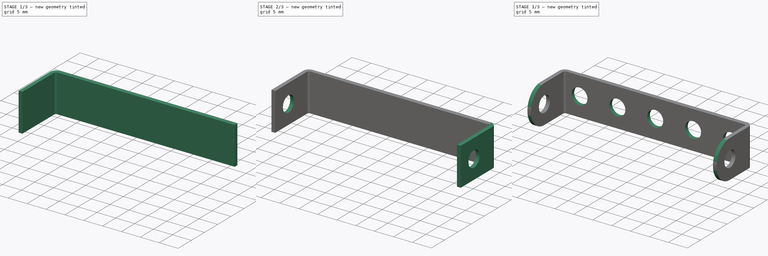
[diagram: build sequence overview — one tinted view per stage of 3, left to right]
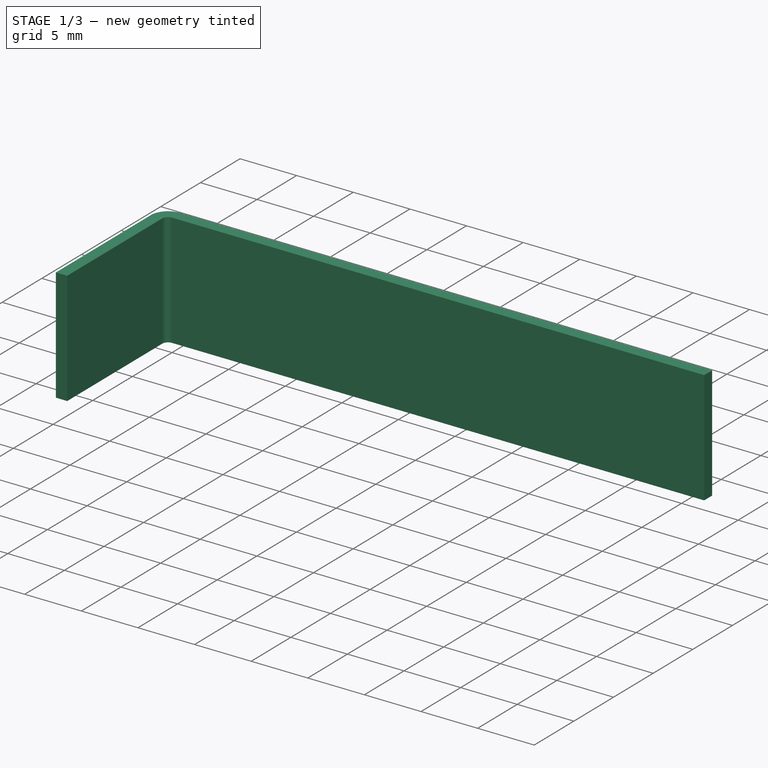
[diagram: stage 1 of 3 — iso view after this stage's code; geometry added in this stage tinted green]
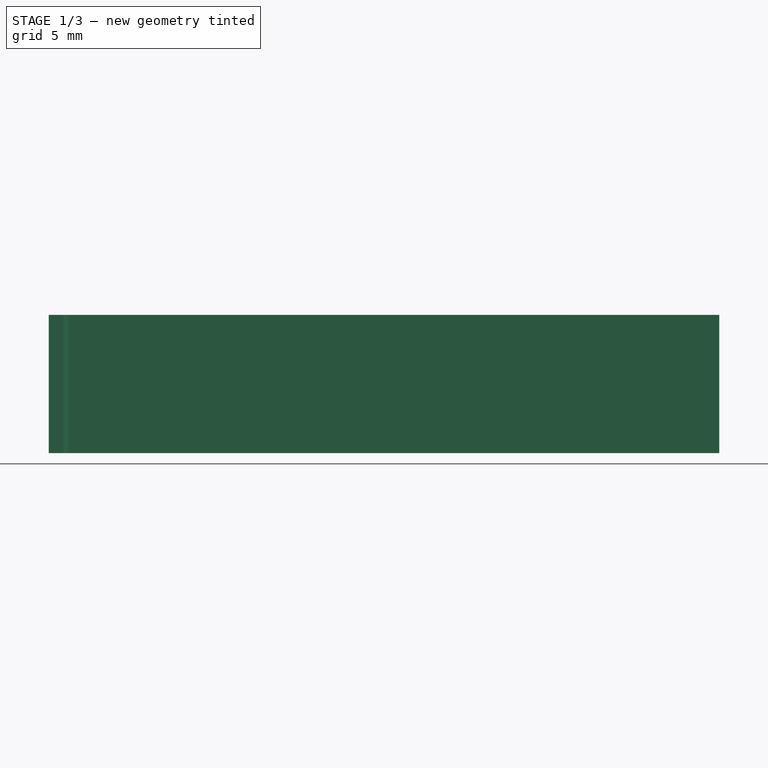
[diagram: stage 1 of 3 — front view after this stage's code; geometry added in this stage tinted green]
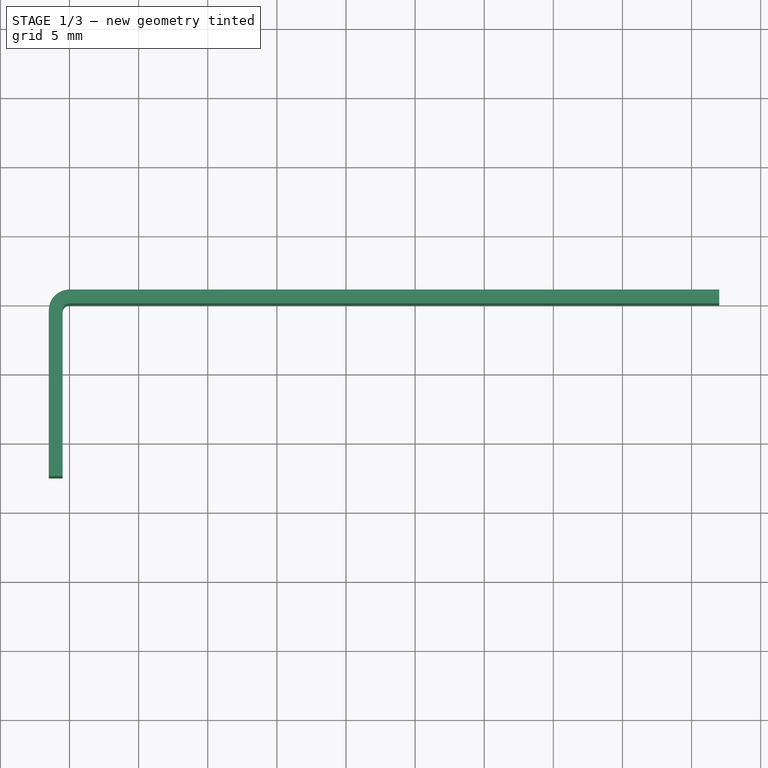
[diagram: stage 1 of 3 — top view after this stage's code; geometry added in this stage tinted green]
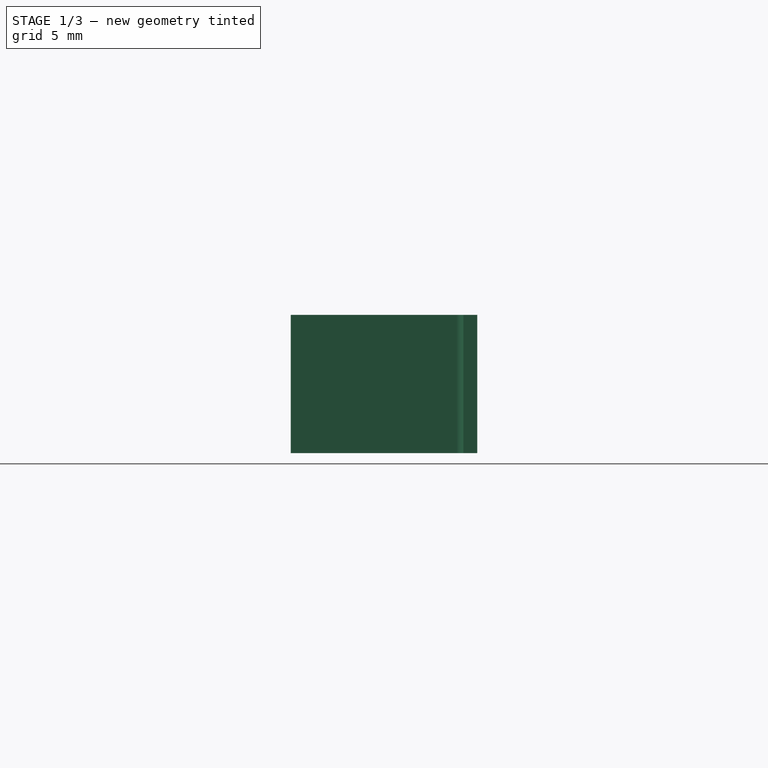
[diagram: stage 1 of 3 — right view after this stage's code; geometry added in this stage tinted green]
FCSTD DOCUMENT  (FreeCAD 0.16RUnknown)
Label: skoba_1_5_1_v2
License: All rights reserved
LicenseURL: http://en.wikipedia.org/wiki/All_rights_reserved
objects: Sketcher::SketchObject×3, Part::FeaturePython×2, PartDesign::Pocket×2, Drawing::FeatureViewPart×2, PartDesign::Pad×1, PartDesign::Fillet×1, Part::Feature×1, Drawing::FeaturePage×1
note: 13 computed .brp shape members not serialized (recipe doc carries the construction recipe); baked Part::Feature solids carry a one-line shape summary decoded from their .brp

FEATURE [Sketcher::SketchObject] Sketch
  sketch-geometry (4):
    g0: LineSegment StartX=0 StartY=0 StartZ=0 EndX=47 EndY=0 EndZ=0
    g1: LineSegment StartX=47 StartY=0 StartZ=0 EndX=47 EndY=1 EndZ=0
    g2: LineSegment StartX=47 StartY=1 StartZ=0 EndX=0 EndY=1 EndZ=0
    g3: LineSegment StartX=0 StartY=1 StartZ=0 EndX=0 EndY=0 EndZ=0
  constraints (11):
    c: Coincident(g0,g1)
    c: Coincident(g1,g2)
    c: Coincident(g2,g3)
    c: Coincident(g3,g0)
    c: Horizontal(g0)
    c: Horizontal(g2)
    c: Vertical(g1)
    c: Vertical(g3)
    c: Coincident(g0,g-1)
    c: DistanceY(g-1,g2) = 1
    c: DistanceX(g-1,g0) = 47
FEATURE [PartDesign::Pad] Pad
  Length = 10
  Length2 = 100
  Sketch = -> Sketch
  Type = 0
FEATURE [Part::FeaturePython] Bend  # WARN: FeaturePython — macro-defined, semantics opaque (R4)
  angle = 90
  baseObject = -> Pad [Face4]
  gap1 = 0
  gap2 = 0
  invert = false
  length = 12
  radius = 0.5
  reliefd = 1
  reliefw = 0.5
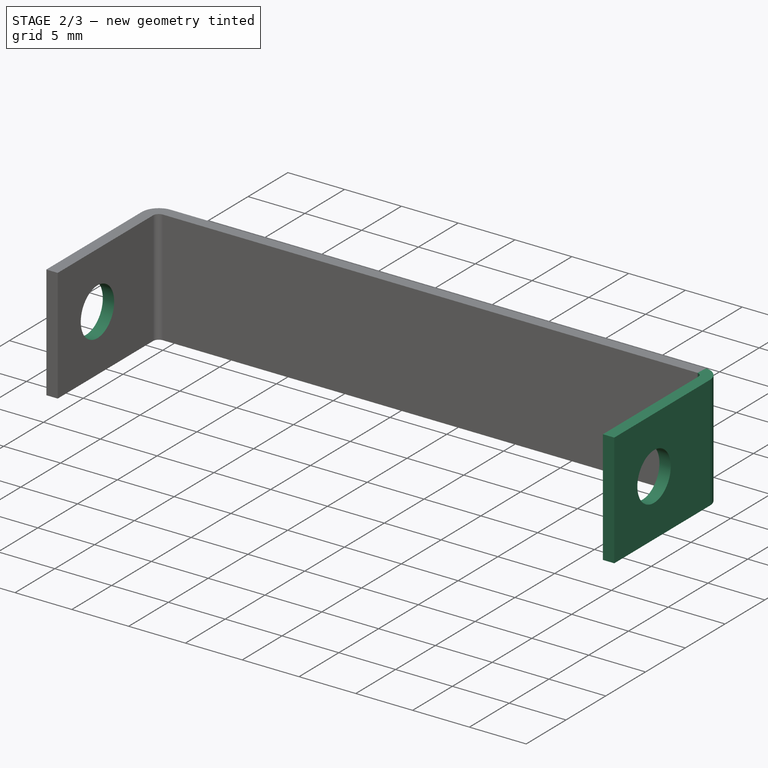
[diagram: stage 2 of 3 — iso view after this stage's code; geometry added in this stage tinted green]
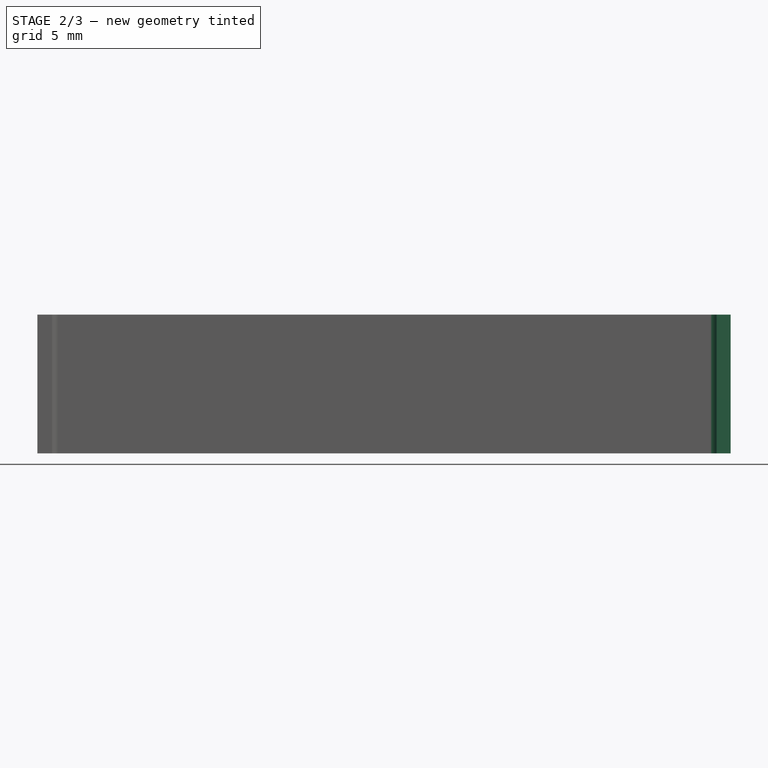
[diagram: stage 2 of 3 — front view after this stage's code; geometry added in this stage tinted green]
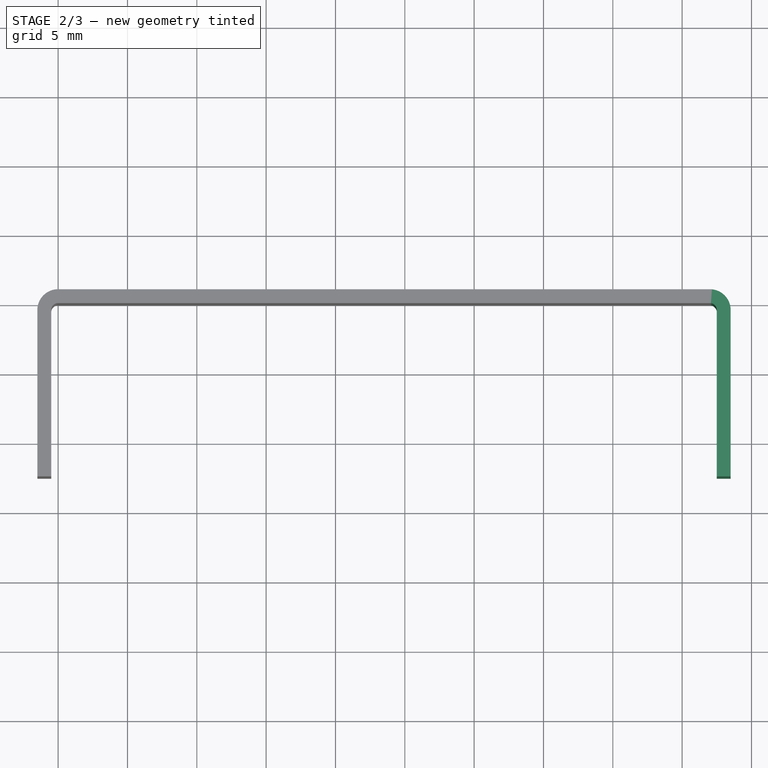
[diagram: stage 2 of 3 — top view after this stage's code; geometry added in this stage tinted green]
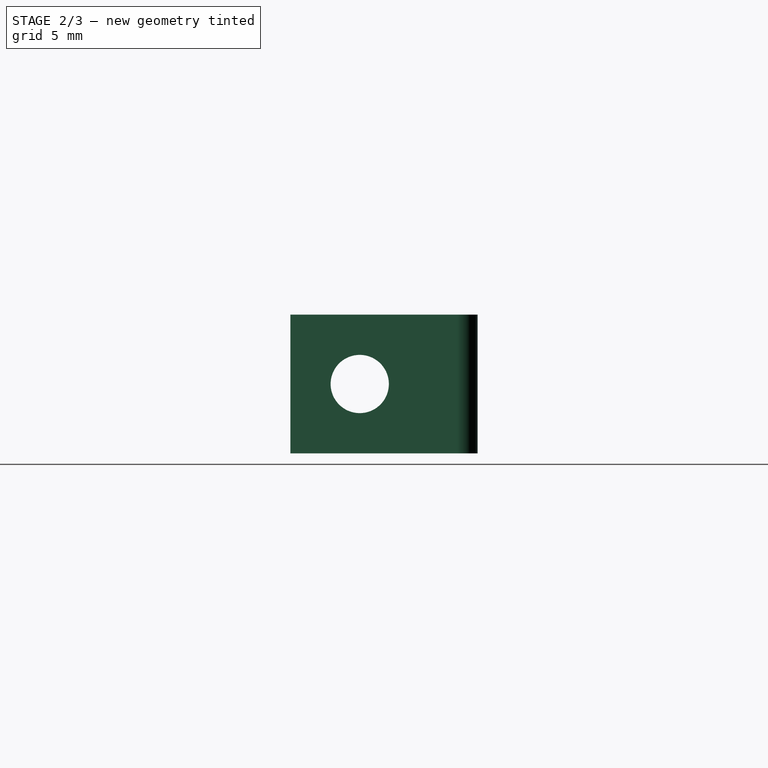
[diagram: stage 2 of 3 — right view after this stage's code; geometry added in this stage tinted green]
FEATURE [Part::FeaturePython] Bend001  # WARN: FeaturePython — macro-defined, semantics opaque (R4)
  angle = 90
  baseObject = -> Bend [Face14]
  gap1 = 0
  gap2 = 0
  invert = true
  length = 12
  radius = 0.5
  reliefd = 1
  reliefw = 0.5
FEATURE [Sketcher::SketchObject] Sketch002
  ExternalGeometry = -> [Bend001]
  Placement = pos=(48.5,0,0) rot=(0.57735,0.57735,0.57735;2.0944rad)
  Support = -> Bend001 [Face3]
  sketch-geometry (1):
    g0: Circle CenterX=-7.5 CenterY=5 CenterZ=0 NormalX=0 NormalY=0 NormalZ=1 Radius=2.1
  constraints (3):
    c: Radius(g0) = 2.1
    c: DistanceX(g-4,g0) = 5
    c: DistanceY(g0,g-4) = 5
FEATURE [PartDesign::Pocket] Pocket
  Length = 5
  Sketch = -> Sketch002
  Type = 1
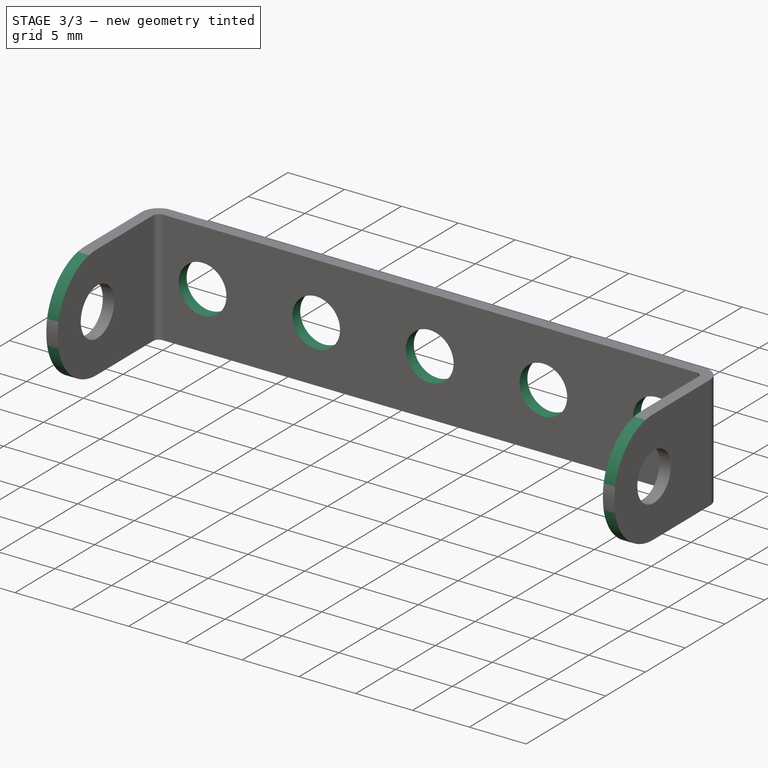
[diagram: stage 3 of 3 — iso view after this stage's code; geometry added in this stage tinted green]
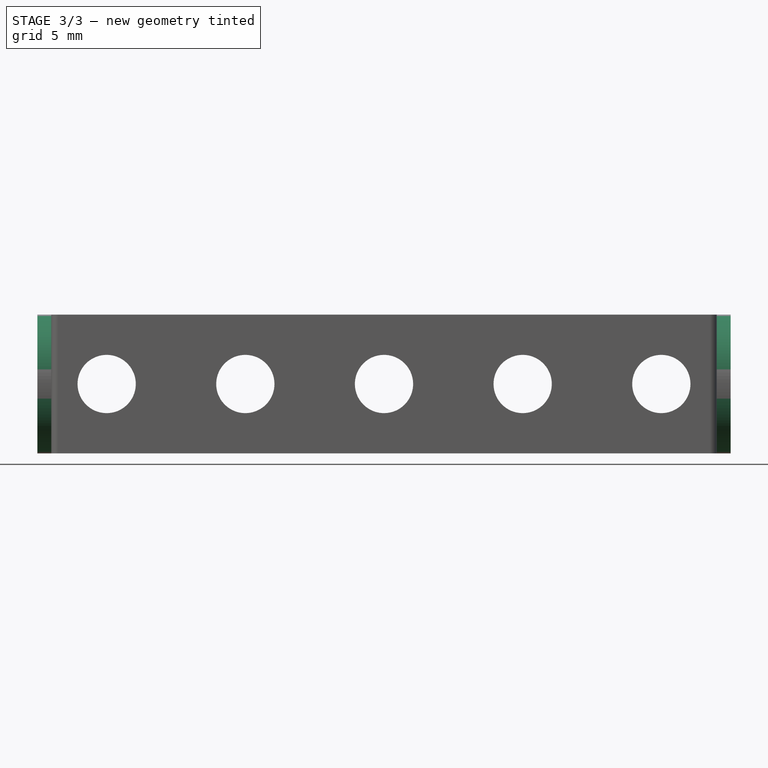
[diagram: stage 3 of 3 — front view after this stage's code; geometry added in this stage tinted green]
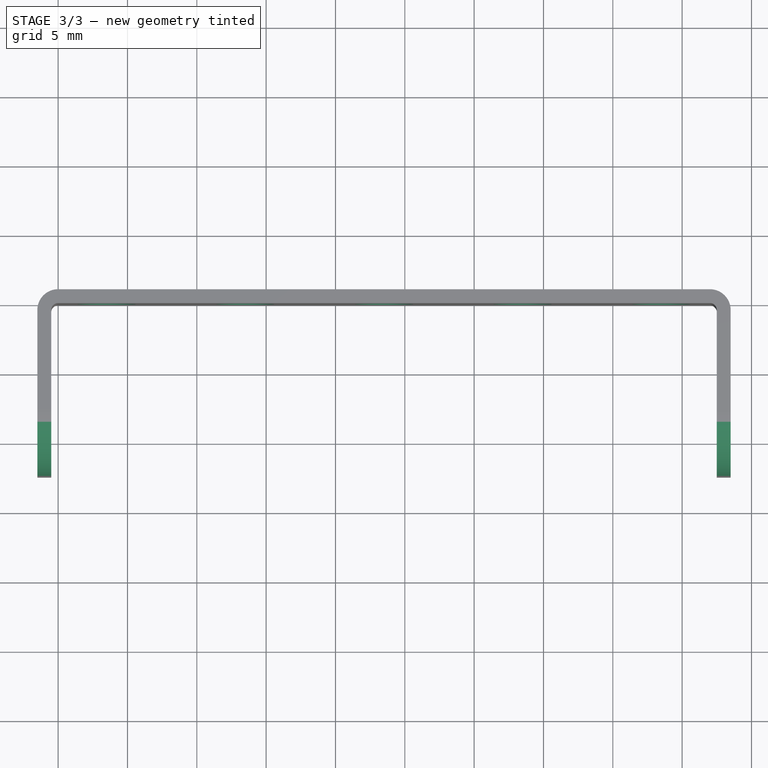
[diagram: stage 3 of 3 — top view after this stage's code; geometry added in this stage tinted green]
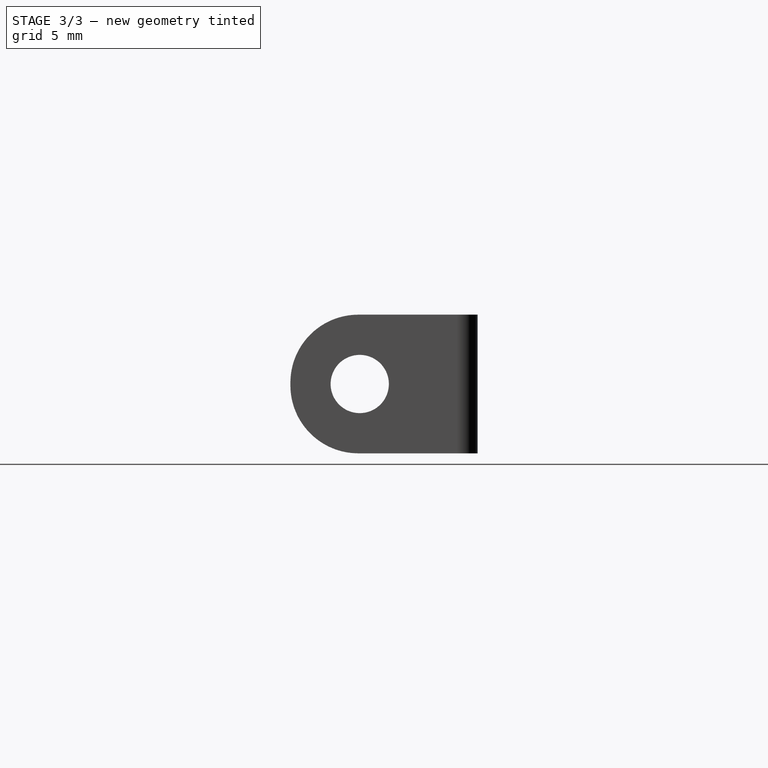
[diagram: stage 3 of 3 — right view after this stage's code; geometry added in this stage tinted green]
FEATURE [PartDesign::Fillet] Fillet
  Base = -> Pocket [Edge40,Edge41,Edge4,Edge3]
  Radius = 4.9
FEATURE [Sketcher::SketchObject] Sketch003
  ExternalGeometry = -> [Fillet]
  Placement = pos=(0,1,0) rot=(0,0.707107,0.707107;3.14159rad)
  Support = -> Fillet [Face13]
  sketch-geometry (9):
    g0: Circle CenterX=-43.5 CenterY=5 CenterZ=0 NormalX=0 NormalY=0 NormalZ=1 Radius=2.1
    g1: Circle CenterX=-33.5 CenterY=5 CenterZ=0 NormalX=0 NormalY=0 NormalZ=1 Radius=2.1
    g2: LineSegment [constr] StartX=-43.5 StartY=5 StartZ=0 EndX=-33.5 EndY=5 EndZ=0
    g3: Circle CenterX=-23.5 CenterY=5 CenterZ=0 NormalX=0 NormalY=0 NormalZ=1 Radius=2.1
    g4: LineSegment [constr] StartX=-33.5 StartY=5 StartZ=0 EndX=-23.5 EndY=5 EndZ=0
    g5: Circle CenterX=-13.5 CenterY=5 CenterZ=0 NormalX=0 NormalY=0 NormalZ=1 Radius=2.1
    g6: LineSegment [constr] StartX=-23.5 StartY=5 StartZ=0 EndX=-13.5 EndY=5 EndZ=0
    g7: Circle CenterX=-3.5 CenterY=5 CenterZ=0 NormalX=0 NormalY=0 NormalZ=1 Radius=2.1
    g8: LineSegment [constr] StartX=-13.5 StartY=5 StartZ=0 EndX=-3.5 EndY=5 EndZ=0
  constraints (23):
    c: Radius(g0) = 2.1
    c: DistanceY(g0,g-4) = 5
    c: Equal(g0,g1) = 2.1
    c: Coincident(g0,g2)
    c: Coincident(g1,g2)
    c: Distance(g2) = 10
    c: Angle(g2) = 0
    c: Equal(g0,g3) = 2.1
    c: Coincident(g1,g4)
    c: Coincident(g3,g4)
    c: Equal(g2,g4)
    c: Parallel(g4,g2)
    c: Equal(g0,g5) = 2.1
    c: Coincident(g3,g6)
    c: Coincident(g5,g6)
    c: Equal(g2,g6)
    c: Parallel(g6,g2)
    c: Equal(g0,g7) = 2.1
    c: Coincident(g5,g8)
    c: Coincident(g7,g8)
    c: Equal(g2,g8)
    c: Parallel(g8,g2)
    c: DistanceX(g-7,g0) = 5
FEATURE [PartDesign::Pocket] Pocket001
  Length = 5
  Sketch = -> Sketch003
  Type = 0
FEATURE [Part::Feature] Unfold
  shape: bbox 75.16 x 1 x 10 mm, 33 faces (baked)
FEATURE [Drawing::FeatureViewPart] Ortho  label="Ortho_0_0"
  Direction = (1,0,0)
  HiddenWidth = 0.15
  LineWidth = 0.35
  Rotation = -90
  ShowHiddenLines = false
  ShowSmoothLines = false
  Source = -> Unfold
  Tolerance = 0.05
  ViewResult = <g id="Ortho_0_0"\n   transform="rotate(-90,19.7249,153.5) translate(19.7249,153.5) scale(1,1)"\n  >\n<g   stroke="rgb(0, 0, 0)"\n   stroke-width="0.35"\n   stroke-linecap="butt"\n   stroke-linejoin="miter"\n   fill="none"\n   transform="scale(1,-1)"\n  >\n<path d="M4.9,-1 L4.35137,-1  L3.80965,-1  L3.28163,-1  L2.77397,-1  L2.29304,-1  L1.8449,-1  L1.43518,-1  L1.06903,-1  L0.751051,-1  L0.485253,-1  L0.274972,-1  L0.122853,-1  L0.0308102,-1  L-8.88178e-16,-1 " /><path id= "2" d=" M 4.9 -1 L 5.1 -1 " />\n<path id= "3" d=" M 4.9 -1 L 5.1 -1 " />\n<path d="M5.1,-1 L5.64863,-1  L6.19035,-1  L6.71837,-1  L7.22603,-1  L7.70696,-1  L8.1551,-1  L8.56482,-1  L8.93097,-1  L9.24895,-1  L9.51475,-1  L9.72503,-1  L9.87715,-1  L9.96919,-1  L10,-1 " /><path id= "5" d=" M -8.88178e-16 -7.88258e-16 L -8.88178e-16 -1 " />\n<path d="M4.9,0 L4.35137,0  L3.80965,0  L3.28163,0  L2.77397,0  L2.29304,0  L1.8449,0  L1.43518,0  L1.06903,0  L0.751051,0  L0.485253,0  L0.274972,0  L0.122853,0  L0.0308102,0  L-8.88178e-16,0 " /><path id= "7" d=" M 4.9 0 L 5.1 0 " />\n<path d="M5.1,0 L5.64863,0  L6.19035,0  L6.71837,0  L7.22603,0  L7.70696,0  L8.1551,0  L8.56482,0  L8.93097,0  L9.24895,0  L9.51475,0  L9.72503,0  L9.87715,0  L9.96919,0  L10,0 " /><path d="M5.1,2.32882e-16 L5.08572,2.32953e-16  L5.07144,2.33012e-16  L5.05716,2.3306e-16  L5.04287,2.33098e-16  L5.02858,2.33125e-16  L5.01429,2.33141e-16  L5,2.33147e-16  L4.98571,2.33141e-16  L4.97142,2.33125e-16  L4.95713,2.33098e-16  L4.94284,2.3306e-16  L4.92856,2.33012e-16  L4.91428,2.32953e-16  L4.9,2.32882e-16 " /><path id= "10" d=" M 4.9 0 L 4.9 -1 " />\n<path id= "11" d=" M 5.1 0 L 5.1 -1 " />\n<path id= "12" d=" M 10 -7.88258e-16 L 10 -1 " />\n<path id= "13" d=" M 4.9 -1 L 5.1 -1 " />\n<path id= "14" d=" M 4.9 -1 L 5.1 -1 " />\n<path id= "15" d=" M 4.9 -1 L 5.1 -1 " />\n</g>\n</g>
  Visible = true
  X = 19.7249
  Y = 153.5
FEATURE [Drawing::FeatureViewPart] Ortho001  label="Ortho_1_0"
  Direction = (0,1,0)
  HiddenWidth = 0.15
  LineWidth = 0.35
  Rotation = -90
  ShowHiddenLines = false
  ShowSmoothLines = false
  Source = -> Unfold
  Tolerance = 0.05
  ViewResult = <g id="Ortho_1_0"\n   transform="rotate(-90,139.112,153.5) translate(139.112,153.5) scale(1,1)"\n  >\n<g   stroke="rgb(0, 0, 0)"\n   stroke-width="0.35"\n   stroke-linecap="butt"\n   stroke-linejoin="miter"\n   fill="none"\n   transform="scale(1,-1)"\n  >\n<path id= "1" d=" M 0 49.0813 L 0 56.1813 " />\n<path d="M4.9 61.0813 A4.9 4.9 0 0 1 -8.88178e-16 56.1813" /><path id= "3" d=" M 0 49.0813 L 10 49.0813 " />\n<path id= "4" d=" M 4.9 61.0813 L 5.1 61.0813 " />\n<path id= "5" d=" M 10 49.0813 L 10 56.1813 " />\n<path d="M5.1 61.0813 A4.9 4.9 0 0 0 10 56.1813" /><circle cx ="5" cy ="56.0813" r ="2.1" /><path id= "8" d=" M 0 47 L 10 47 " />\n<path id= "9" d=" M 0 47 L 0 49.0813 " />\n<path id= "10" d=" M 10 47 L 10 49.0813 " />\n<path id= "11" d=" M 10 47 L 10 49.0813 " />\n<path id= "12" d=" M 0 47 L 0 0 " />\n<path id= "13" d=" M 10 47 L 10 0 " />\n<path id= "14" d=" M 0 0 L 10 0 " />\n<circle cx ="5" cy ="43.5" r ="2.1" /><circle cx ="5" cy ="33.5" r ="2.1" /><circle cx ="5" cy ="23.5" r ="2.1" /><circle cx ="5" cy ="3.5" r ="2.1" /><circle cx ="5" cy ="13.5" r ="2.1" /><path id= "20" d=" M 0 -2.08131 L 0 -9.18131 " />\n<path d="M4.9 -14.0813 A4.9 4.9 0 0 0 -8.88178e-16 -9.18131" /><path id= "22" d=" M 0 -2.08131 L 10 -2.08131 " />\n<path id= "23" d=" M 4.9 -14.0813 L 5.1 -14.0813 " />\n<path id= "24" d=" M 10 -2.08131 L 10 -9.18131 " />\n<path d="M5.1 -14.0813 A4.9 4.9 0 0 1 10 -9.18131" /><circle cx ="5" cy ="-9.08131" r ="2.1" /><path id= "27" d=" M 0 0 L 0 -2.08131 " />\n<path id= "28" d=" M 10 0 L 10 -2.08131 " />\n<circle cx ="5" cy ="33.5" r ="2.1" /><circle cx ="5" cy ="43.5" r ="2.1" /></g>\n</g>
  Visible = true
  X = 139.112
  Y = 153.5
FEATURE [Drawing::FeaturePage] Page
  Group = -> [Ortho,Ortho001]
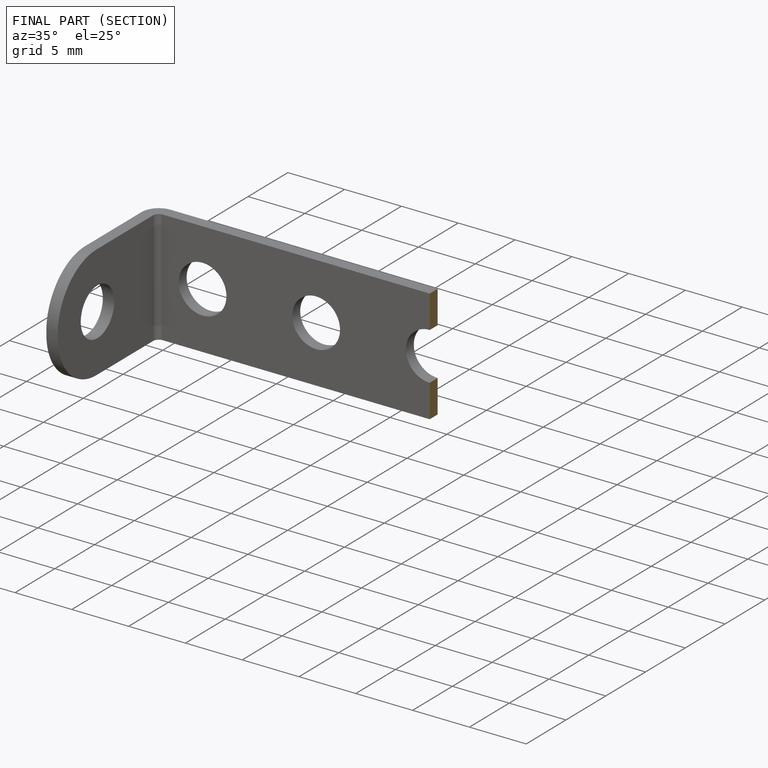
[diagram: finished part — half-section view (interior)]
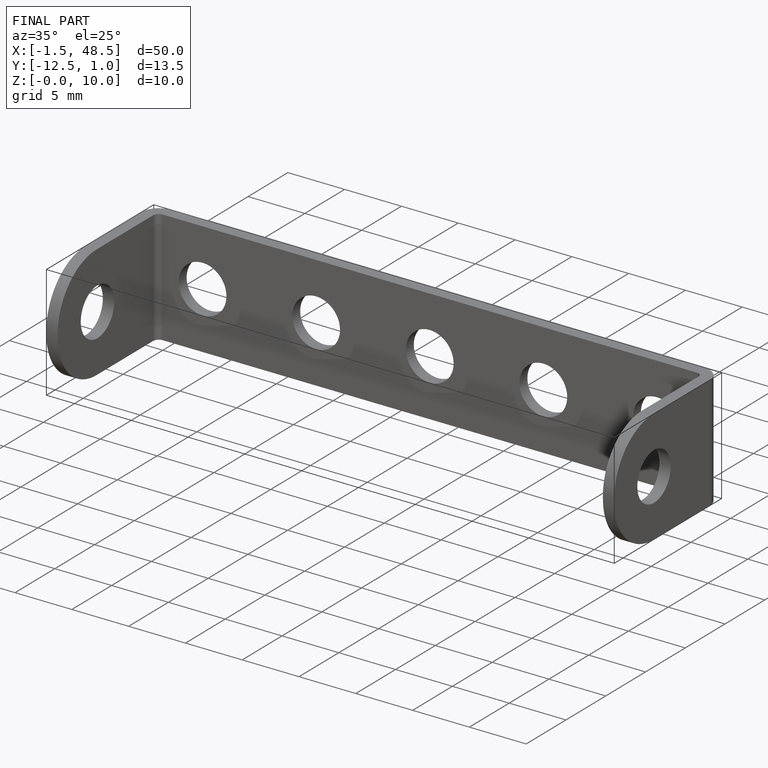
[diagram: finished part — iso view with bounding-box wireframe]
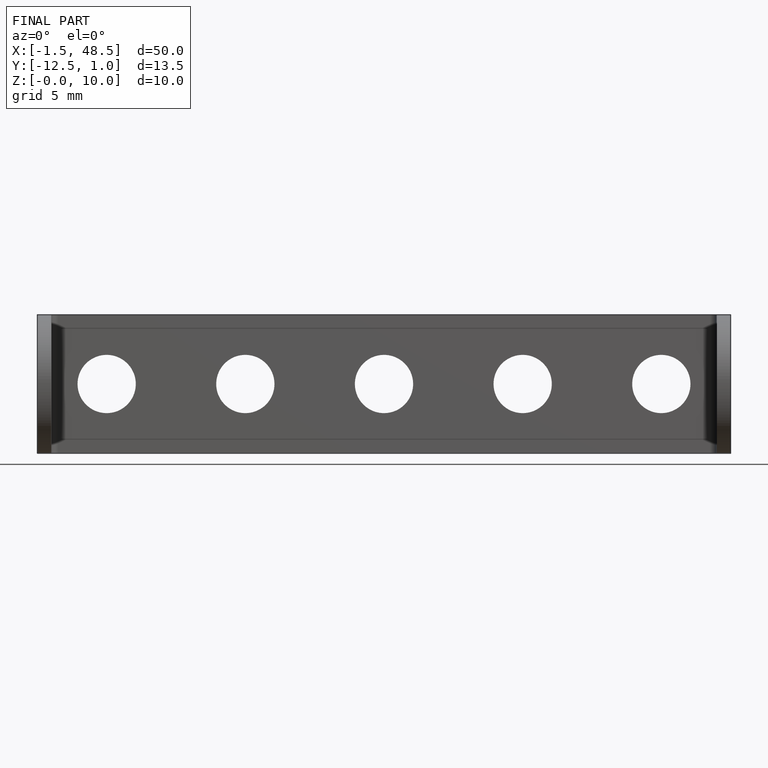
[diagram: finished part — front view with bounding-box wireframe]
